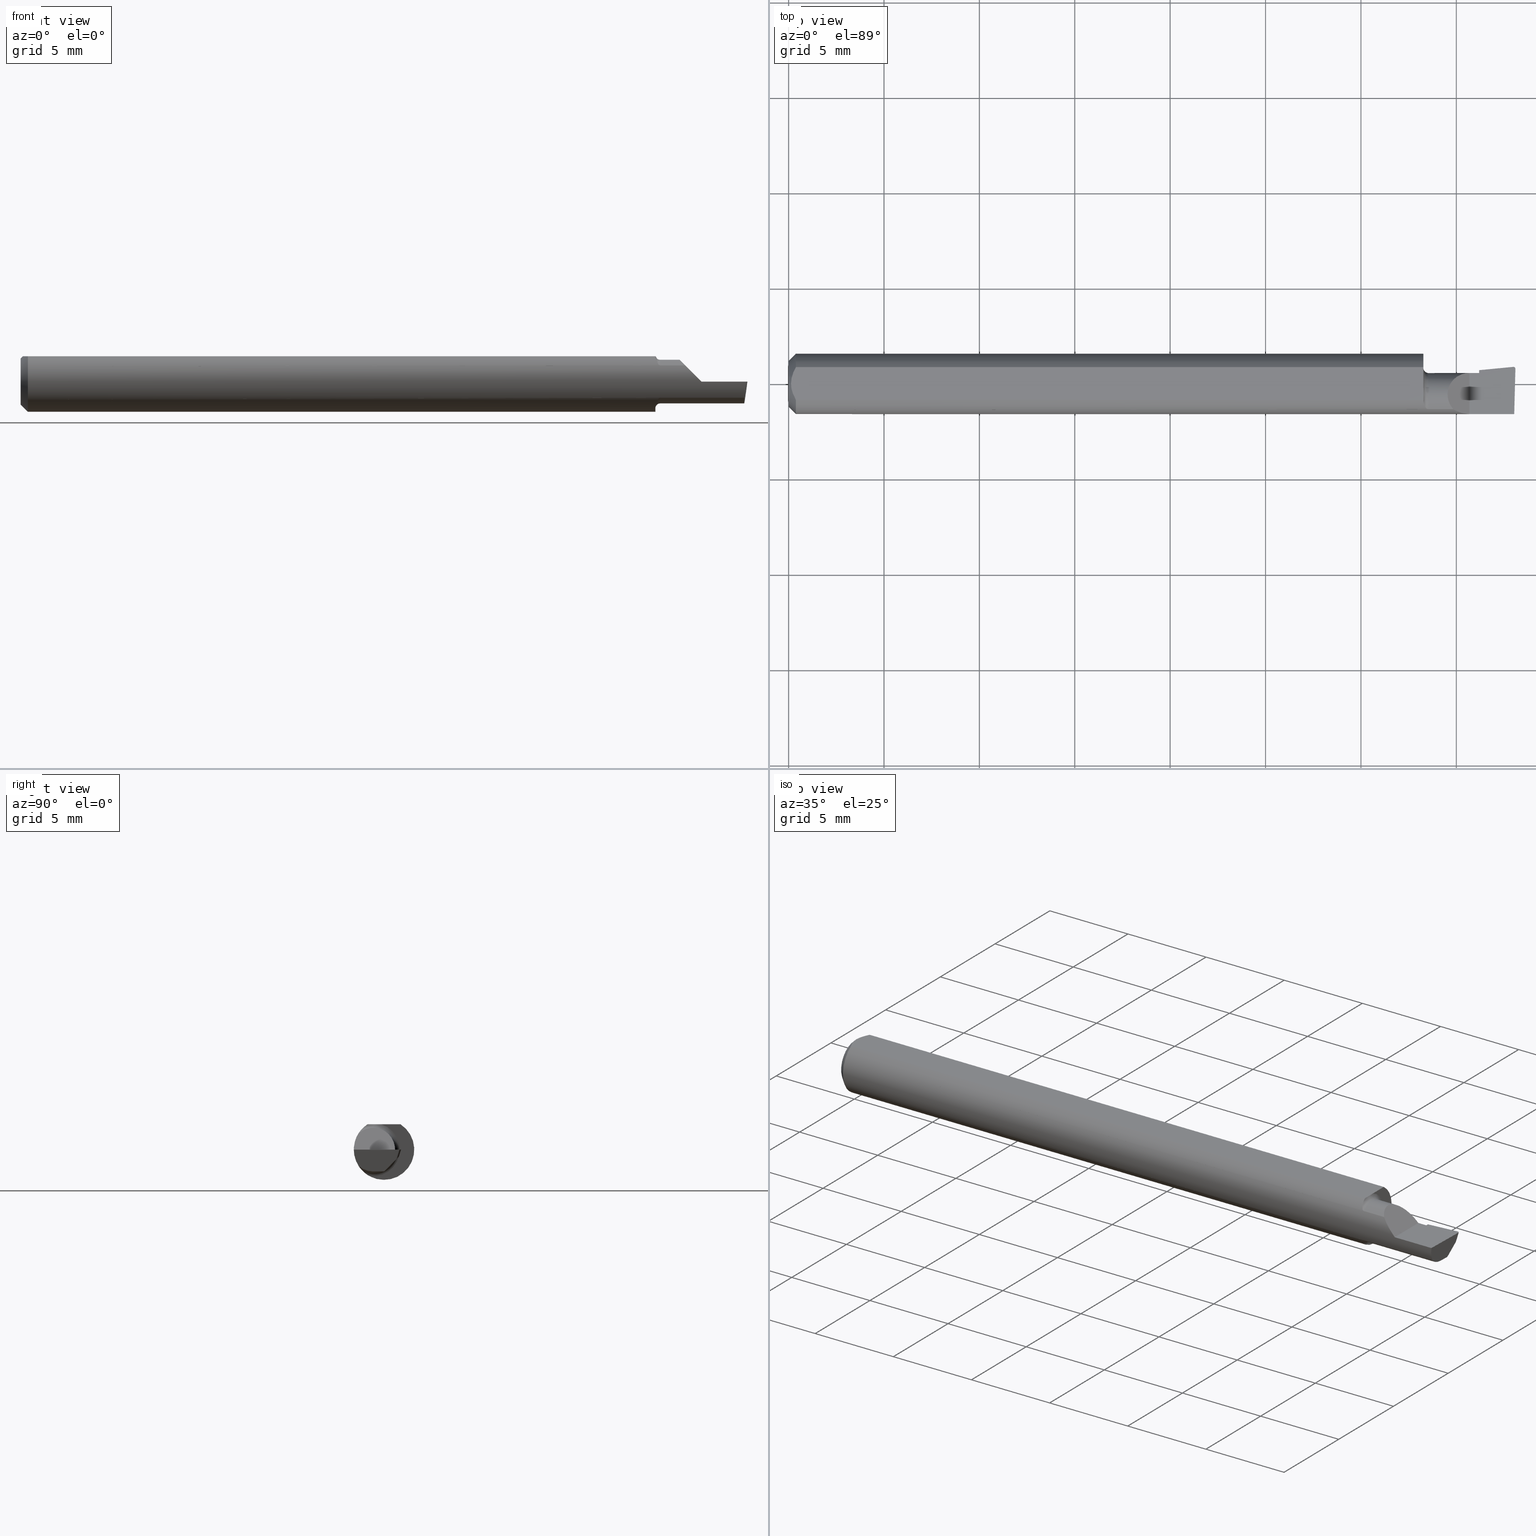
[diagram: canonical four-view strip — front | top / right | iso, engineering-drawing reading convention]
A machine part, canonical four-view strip (front | top / right | iso — engineering-drawing reading convention). The complete STEP part file that produces these views, byte-faithful:
ISO-10303-21;
HEADER;
FILE_DESCRIPTION (( 'STEP AP214' ),
    '1' );
FILE_NAME ('B100150R.STEP',
    '2020-05-08T22:20:16',
    ( '' ),
    ( '' ),
    'SwSTEP 2.0',
    'SolidWorks 2018',
    '' );
FILE_SCHEMA (( 'AUTOMOTIVE_DESIGN' ));
ENDSEC;

DATA;
#1 = AXIS2_PLACEMENT_3D ( 'NONE', #5, #155, #512 ) ;
#2 = CIRCLE ( 'NONE', #38, 0.04734999999999965625 ) ;
#3 = EDGE_CURVE ( 'NONE', #467, #34, #150, .T. ) ;
#4 = VERTEX_POINT ( 'NONE', #174 ) ;
#5 = CARTESIAN_POINT ( 'NONE',  ( 1.490592351376191838, -0.04680632761517492663, -0.05901368851803154292 ) ) ;
#6 = EDGE_LOOP ( 'NONE', ( #542, #25, #130, #87 ) ) ;
#7 = STYLED_ITEM ( 'NONE', ( #131 ), #96 ) ;
#8 = CARTESIAN_POINT ( 'NONE',  ( 1.315004130572074326, -0.05000376612213290606, -0.03726710953164809326 ) ) ;
#9 = APPLICATION_PROTOCOL_DEFINITION ( 'draft international standard', 'automotive_design', 1998, #59 ) ;
#10 = DIRECTION ( 'NONE',  ( 1.000000000000000000, 0.0000000000000000000, 0.0000000000000000000 ) ) ;
#11 = CARTESIAN_POINT ( 'NONE',  ( 0.01500000000000000465, 0.0000000000000000000, -0.06235000000000000264 ) ) ;
#12 = CARTESIAN_POINT ( 'NONE',  ( 1.425000000000000266, 0.02842832138518451568, 0.0000000000000000000 ) ) ;
#13 = CARTESIAN_POINT ( 'NONE',  ( 1.498384822753108914, 0.03264131821163467062, -0.01250862198832606090 ) ) ;
#14 = VERTEX_POINT ( 'NONE', #433 ) ;
#15 = ORIENTED_EDGE ( 'NONE', *, *, #494, .F. ) ;
#16 = DIRECTION ( 'NONE',  ( -1.000000000000000000, -0.0000000000000000000, -0.0000000000000000000 ) ) ;
#17 = VECTOR ( 'NONE', #488, 39.37007874015748854 ) ;
#18 = EDGE_CURVE ( 'NONE', #577, #606, #344, .T. ) ;
#19 = VECTOR ( 'NONE', #269, 39.37007874015748854 ) ;
#20 = ORIENTED_EDGE ( 'NONE', *, *, #133, .T. ) ;
#21 = CARTESIAN_POINT ( 'NONE',  ( 0.01500000000000185039, -0.03386738844380016850, 0.05235000000000000070 ) ) ;
#22 = ORIENTED_EDGE ( 'NONE', *, *, #334, .T. ) ;
#23 = STYLED_ITEM ( 'NONE', ( #427 ), #267 ) ;
#24 = CARTESIAN_POINT ( 'NONE',  ( 1.494167560590867527, 0.03076208604347173067, -0.01402709660331437347 ) ) ;
#25 = ORIENTED_EDGE ( 'NONE', *, *, #33, .T. ) ;
#26 = CARTESIAN_POINT ( 'NONE',  ( 1.393107270290912414, -0.06234999999999999570, 0.01189272970908759539 ) ) ;
#27 = UNCERTAINTY_MEASURE_WITH_UNIT (LENGTH_MEASURE( 1.000000000000000082E-05 ), #374, 'distance_accuracy_value', 'NONE');
#28 = ORIENTED_EDGE ( 'NONE', *, *, #515, .F. ) ;
#29 = ORIENTED_EDGE ( 'NONE', *, *, #633, .F. ) ;
#30 = DIRECTION ( 'NONE',  ( 2.429359850419095604E-34, 4.268512490100411279E-17, 1.000000000000000000 ) ) ;
#31 = ORIENTED_EDGE ( 'NONE', *, *, #84, .T. ) ;
#32 = AXIS2_PLACEMENT_3D ( 'NONE', #95, #99, #54 ) ;
#33 = EDGE_CURVE ( 'NONE', #578, #281, #539, .T. ) ;
#34 = VERTEX_POINT ( 'NONE', #378 ) ;
#35 = DIRECTION ( 'NONE',  ( 0.0000000000000000000, 0.6963153109074924352, 0.7177360153954948085 ) ) ;
#36 = ORIENTED_EDGE ( 'NONE', *, *, #3, .T. ) ;
#37 = CARTESIAN_POINT ( 'NONE',  ( 1.317655921777290517, -0.05218794095652969783, 0.03413037274368475177 ) ) ;
#38 = AXIS2_PLACEMENT_3D ( 'NONE', #376, #16, #332 ) ;
#39 = VERTEX_POINT ( 'NONE', #21 ) ;
#40 = DIRECTION ( 'NONE',  ( -0.09165774897393340337, 0.9519021185660613282, -0.2923717047227305521 ) ) ;
#41 = CARTESIAN_POINT ( 'NONE',  ( 1.425000000000000266, -0.005995022861444606645, -0.04504999999999998589 ) ) ;
#42 = DIRECTION ( 'NONE',  ( 5.691349986800549142E-18, -1.000000000000000000, 0.0000000000000000000 ) ) ;
#43 = ORIENTED_EDGE ( 'NONE', *, *, #562, .T. ) ;
#44 = DIRECTION ( 'NONE',  ( -1.000000000000000000, -5.691349986800549142E-18, 0.0000000000000000000 ) ) ;
#45 = DIRECTION ( 'NONE',  ( 0.0000000000000000000, 0.0000000000000000000, 1.000000000000000000 ) ) ;
#46 =( BOUNDED_CURVE ( )  B_SPLINE_CURVE ( 3, ( #527, #431, #639, #24 ),
 .UNSPECIFIED., .F., .F. ) 
 B_SPLINE_CURVE_WITH_KNOTS ( ( 4, 4 ),
 ( 3.064097098354602977, 3.156599629463090473 ),
 .UNSPECIFIED. ) 
 CURVE ( )  GEOMETRIC_REPRESENTATION_ITEM ( )  RATIONAL_B_SPLINE_CURVE ( ( 1.000000000000000000, 0.9992870672494025275, 0.9992870672494025275, 1.000000000000000000 ) ) 
 REPRESENTATION_ITEM ( '' )  );
#47 = FACE_OUTER_BOUND ( 'NONE', #546, .T. ) ;
#48 = PLANE ( 'NONE',  #1 ) ;
#49 = ADVANCED_FACE ( 'NONE', ( #294 ), #262, .T. ) ;
#50 = VERTEX_POINT ( 'NONE', #226 ) ;
#51 = EDGE_CURVE ( 'NONE', #585, #511, #2, .T. ) ;
#52 = CARTESIAN_POINT ( 'NONE',  ( 0.01218518006020415448, 0.02868529347538067639, 0.05235000000000000070 ) ) ;
#53 = ORIENTED_EDGE ( 'NONE', *, *, #525, .T. ) ;
#54 = DIRECTION ( 'NONE',  ( 0.0000000000000000000, -1.000000000000000000, 0.0000000000000000000 ) ) ;
#55 = VECTOR ( 'NONE', #464, 39.37007874015748143 ) ;
#56 = ORIENTED_EDGE ( 'NONE', *, *, #348, .T. ) ;
#57 = PRESENTATION_LAYER_ASSIGNMENT (  '', '', ( #23 ) ) ;
#58 = CYLINDRICAL_SURFACE ( 'NONE', #584, 0.04504999999999999283 ) ;
#59 = APPLICATION_CONTEXT ( 'automotive_design' ) ;
#60 = CARTESIAN_POINT ( 'NONE',  ( 1.425000000000000266, 0.01759478951136490138, -0.02073449570020009097 ) ) ;
#61 = ORIENTED_EDGE ( 'NONE', *, *, #256, .F. ) ;
#62 = APPLICATION_CONTEXT ( 'automotive_design' ) ;
#63 = CARTESIAN_POINT ( 'NONE',  ( 1.425000000000000266, 0.004321405215356080576, -0.03441620828959360279 ) ) ;
#64 = VERTEX_POINT ( 'NONE', #69 ) ;
#65 =( NAMED_UNIT ( * ) PLANE_ANGLE_UNIT ( ) SI_UNIT ( $, .RADIAN. ) );
#66 = CARTESIAN_POINT ( 'NONE',  ( 1.485933158780053276, 0.006882228698993225931, -0.07557081307649678170 ) ) ;
#67 = VECTOR ( 'NONE', #135, 39.37007874015748143 ) ;
#68 = DIRECTION ( 'NONE',  ( -1.000000000000000000, -5.691349986800549142E-18, -0.0000000000000000000 ) ) ;
#69 = CARTESIAN_POINT ( 'NONE',  ( 1.405000000000000249, -0.06235000000000005121, 1.163414459189985436E-17 ) ) ;
#70 = AXIS2_PLACEMENT_3D ( 'NONE', #413, #108, #456 ) ;
#71 = EDGE_CURVE ( 'NONE', #39, #14, #489, .T. ) ;
#72 = DIRECTION ( 'NONE',  ( -0.1240019227988989614, -0.3022330132596628971, -0.9451342385281364944 ) ) ;
#73 = LINE ( 'NONE', #11, #55 ) ;
#74 = ORIENTED_EDGE ( 'NONE', *, *, #618, .T. ) ;
#75 = FACE_OUTER_BOUND ( 'NONE', #499, .T. ) ;
#76 = AXIS2_PLACEMENT_3D ( 'NONE', #635, #72, #333 ) ;
#77 = ORIENTED_EDGE ( 'NONE', *, *, #363, .F. ) ;
#78 = VERTEX_POINT ( 'NONE', #477 ) ;
#79 = AXIS2_PLACEMENT_3D ( 'NONE', #12, #327, #628 ) ;
#80 = LINE ( 'NONE', #450, #474 ) ;
#81 = B_SPLINE_CURVE_WITH_KNOTS ( 'NONE', 3,
 ( #514, #157, #624, #320, #8, #365, #451, #501, #141, #609 ),
 .UNSPECIFIED., .F., .F.,
 ( 4, 2, 2, 2, 4 ),
 ( 1.961463022573438545E-07, 0.0001095081557633810167, 0.0002188201652245046734, 0.0004374441841467520409, 0.0008746922219912415175 ),
 .UNSPECIFIED. ) ;
#82 = ORIENTED_EDGE ( 'NONE', *, *, #280, .T. ) ;
#83 = CARTESIAN_POINT ( 'NONE',  ( 1.500000000000000222, -0.02239999999999999630, -0.04504999999999998589 ) ) ;
#84 = EDGE_CURVE ( 'NONE', #577, #322, #221, .T. ) ;
#85 = EDGE_LOOP ( 'NONE', ( #432, #337, #627 ) ) ;
#86 = VECTOR ( 'NONE', #531, 39.37007874015748143 ) ;
#87 = ORIENTED_EDGE ( 'NONE', *, *, #483, .F. ) ;
#88 = CARTESIAN_POINT ( 'NONE',  ( 1.492874371667014088, -0.04428776192107809762, -0.04097143695815298053 ) ) ;
#89 = CARTESIAN_POINT ( 'NONE',  ( 1.371638225962093394, -0.05267366071428568330, 0.03336177403790626522 ) ) ;
#90 = CARTESIAN_POINT ( 'NONE',  ( 0.0000000000000000000, 6.717187693324806899E-18, 0.04734999999999965625 ) ) ;
#91 = MECHANICAL_DESIGN_GEOMETRIC_PRESENTATION_REPRESENTATION (  '', ( #23 ), #123 ) ;
#92 = ORIENTED_EDGE ( 'NONE', *, *, #459, .F. ) ;
#93 = CARTESIAN_POINT ( 'NONE',  ( 1.509953961983671933, 0.03660845752520203861, 0.0000000000000000000 ) ) ;
#94 = CARTESIAN_POINT ( 'NONE',  ( 1.497690526998707528, 0.02804183703948738213, -0.01718068703854480628 ) ) ;
#95 = CARTESIAN_POINT ( 'NONE',  ( 1.425000000000000266, -0.02239999999999999630, 0.0000000000000000000 ) ) ;
#96 = MANIFOLD_SOLID_BREP ( 'CD2C1CE1-48A6-42ea-B641-DD9F01659EE2-GAAFaceID16', #101 ) ;
#97 = VECTOR ( 'NONE', #509, 39.37007874015748854 ) ;
#98 = LINE ( 'NONE', #545, #236 ) ;
#99 = DIRECTION ( 'NONE',  ( -1.000000000000000000, -5.691349986800549142E-18, -0.0000000000000000000 ) ) ;
#100 = ADVANCED_FACE ( 'NONE', ( #75 ), #58, .T. ) ;
#101 = CLOSED_SHELL ( 'NONE', ( #560, #360, #311, #357, #147, #315, #206, #104, #508, #152, #454, #513, #661, #100, #620, #258, #552, #408, #49 ) ) ;
#102 = LINE ( 'NONE', #136, #228 ) ;
#103 = CARTESIAN_POINT ( 'NONE',  ( 1.499880855614015740, 0.03110005946548960454, 2.797005382439670689E-20 ) ) ;
#104 = ADVANCED_FACE ( 'NONE', ( #463 ), #572, .F. ) ;
#105 = ORIENTED_EDGE ( 'NONE', *, *, #525, .F. ) ;
#106 = AXIS2_PLACEMENT_3D ( 'NONE', #543, #649, #397 ) ;
#107 = EDGE_CURVE ( 'NONE', #534, #395, #339, .T. ) ;
#108 = DIRECTION ( 'NONE',  ( 1.000000000000000000, 0.0000000000000000000, 0.0000000000000000000 ) ) ;
#109 = FILL_AREA_STYLE ('',( #416 ) ) ;
#110 = PLANE ( 'NONE',  #317 ) ;
#111 = CARTESIAN_POINT ( 'NONE',  ( 1.500053207916534070, 0.03152013807843873083, 0.001313657550806701223 ) ) ;
#112 = AXIS2_PLACEMENT_3D ( 'NONE', #161, #114, #472 ) ;
#113 = CIRCLE ( 'NONE', #285, 0.06235000000000000264 ) ;
#114 = DIRECTION ( 'NONE',  ( 1.000000000000000000, 5.691349986800549142E-18, 0.0000000000000000000 ) ) ;
#115 =( LENGTH_UNIT ( ) NAMED_UNIT ( * ) SI_UNIT ( $, .METRE. ) );
#116 =( BOUNDED_CURVE ( )  B_SPLINE_CURVE ( 3, ( #125, #26, #381, #284 ),
 .UNSPECIFIED., .F., .F. ) 
 B_SPLINE_CURVE_WITH_KNOTS ( ( 4, 4 ),
 ( 4.712388980384689674, 5.276982613231242958 ),
 .UNSPECIFIED. ) 
 CURVE ( )  GEOMETRIC_REPRESENTATION_ITEM ( )  RATIONAL_B_SPLINE_CURVE ( ( 1.000000000000000000, 0.9736121104788254543, 0.9736121104788254543, 1.000000000000000000 ) ) 
 REPRESENTATION_ITEM ( '' )  );
#117 = LINE ( 'NONE', #484, #86 ) ;
#118 = ORIENTED_EDGE ( 'NONE', *, *, #334, .F. ) ;
#119 = EDGE_CURVE ( 'NONE', #621, #366, #148, .T. ) ;
#120 = DIRECTION ( 'NONE',  ( -1.000000000000000000, -5.691349986800549142E-18, -0.0000000000000000000 ) ) ;
#121 = CARTESIAN_POINT ( 'NONE',  ( 1.493880948194808544, 0.03095478369585228859, -0.01336835189448973629 ) ) ;
#122 = B_SPLINE_CURVE_WITH_KNOTS ( 'NONE', 3,
 ( #201, #448, #252, #613, #656, #354 ),
 .UNSPECIFIED., .F., .F.,
 ( 4, 2, 4 ),
 ( 0.0001373866386898216002, 0.0004989949926051524777, 0.0008606033465204833552 ),
 .UNSPECIFIED. ) ;
#123 =( GEOMETRIC_REPRESENTATION_CONTEXT ( 3 ) GLOBAL_UNCERTAINTY_ASSIGNED_CONTEXT ( ( #382 ) ) GLOBAL_UNIT_ASSIGNED_CONTEXT ( ( #216, #566, #266 ) ) REPRESENTATION_CONTEXT ( 'NONE', 'WORKASPACE' ) );
#124 = AXIS2_PLACEMENT_3D ( 'NONE', #83, #30, #390 ) ;
#125 = CARTESIAN_POINT ( 'NONE',  ( 1.405000000000000249, -0.06235000000000005121, 1.163414459189985436E-17 ) ) ;
#126 = ORIENTED_EDGE ( 'NONE', *, *, #644, .T. ) ;
#127 = DIRECTION ( 'NONE',  ( -1.000000000000000000, -0.0000000000000000000, -0.0000000000000000000 ) ) ;
#128 = VECTOR ( 'NONE', #127, 39.37007874015748143 ) ;
#129 = ORIENTED_EDGE ( 'NONE', *, *, #292, .T. ) ;
#130 = ORIENTED_EDGE ( 'NONE', *, *, #363, .T. ) ;
#131 = PRESENTATION_STYLE_ASSIGNMENT (( #473 ) ) ;
#132 = LINE ( 'NONE', #612, #540 ) ;
#133 = EDGE_CURVE ( 'NONE', #34, #335, #46, .T. ) ;
#134 = ORIENTED_EDGE ( 'NONE', *, *, #331, .F. ) ;
#135 = DIRECTION ( 'NONE',  ( -5.691349986800549142E-18, 1.000000000000000000, 6.969893544162626646E-34 ) ) ;
#136 = CARTESIAN_POINT ( 'NONE',  ( 1.425000000000000266, -0.02239999999999999630, -0.04504999999999998589 ) ) ;
#137 = ORIENTED_EDGE ( 'NONE', *, *, #528, .F. ) ;
#138 = CARTESIAN_POINT ( 'NONE',  ( 1.341051366671215384, -0.01896673977657535939, 0.06394863332878392148 ) ) ;
#139 = CARTESIAN_POINT ( 'NONE',  ( 1.313772805890642381, -0.04842073308978436796, 0.03934539127329832187 ) ) ;
#140 = DIRECTION ( 'NONE',  ( -1.000000000000000000, -0.0000000000000000000, -0.0000000000000000000 ) ) ;
#141 = CARTESIAN_POINT ( 'NONE',  ( 1.310000000000000275, -0.03531759654985788116, -0.05169891940248795559 ) ) ;
#142 = CARTESIAN_POINT ( 'NONE',  ( 1.500000000000000222, -0.02239999999999999630, -0.04504999999999998589 ) ) ;
#143 = CARTESIAN_POINT ( 'NONE',  ( 1.405000000000000249, -0.2500000000000000555, 1.163414459189985436E-17 ) ) ;
#144 =( BOUNDED_CURVE ( )  B_SPLINE_CURVE ( 3, ( #502, #251, #94, #400 ),
 .UNSPECIFIED., .F., .F. ) 
 B_SPLINE_CURVE_WITH_KNOTS ( ( 4, 4 ),
 ( 3.156599629463090473, 4.715023529952363290 ),
 .UNSPECIFIED. ) 
 CURVE ( )  GEOMETRIC_REPRESENTATION_ITEM ( )  RATIONAL_B_SPLINE_CURVE ( ( 1.000000000000000000, 0.8076450242550375913, 0.8076450242550375913, 1.000000000000000000 ) ) 
 REPRESENTATION_ITEM ( '' )  );
#145 = AXIS2_PLACEMENT_3D ( 'NONE', #569, #218, #268 ) ;
#146 = CARTESIAN_POINT ( 'NONE',  ( 0.01500000000000000465, 0.0000000000000000000, 0.0000000000000000000 ) ) ;
#147 = ADVANCED_FACE ( 'NONE', ( #272 ), #420, .F. ) ;
#148 = CIRCLE ( 'NONE', #282, 0.05504999999999998783 ) ;
#149 = ORIENTED_EDGE ( 'NONE', *, *, #318, .F. ) ;
#150 = LINE ( 'NONE', #121, #17 ) ;
#151 = VECTOR ( 'NONE', #140, 39.37007874015748143 ) ;
#152 = ADVANCED_FACE ( 'NONE', ( #405 ), #593, .F. ) ;
#153 = EDGE_CURVE ( 'NONE', #322, #64, #523, .T. ) ;
#154 = ORIENTED_EDGE ( 'NONE', *, *, #33, .F. ) ;
#155 = DIRECTION ( 'NONE',  ( -0.9922060308645520577, 0.02598182930466774732, 0.1218693434051180274 ) ) ;
#156 = ORIENTED_EDGE ( 'NONE', *, *, #188, .T. ) ;
#157 = CARTESIAN_POINT ( 'NONE',  ( 1.318537702541799250, -0.05267366071428540575, -0.03336177403790673013 ) ) ;
#158 = AXIS2_PLACEMENT_3D ( 'NONE', #237, #591, #185 ) ;
#159 = SURFACE_STYLE_USAGE ( .BOTH. , #466 ) ;
#160 = ORIENTED_EDGE ( 'NONE', *, *, #298, .T. ) ;
#161 = CARTESIAN_POINT ( 'NONE',  ( 1.425000000000000266, -0.02239999999999999630, 0.0000000000000000000 ) ) ;
#162 = CARTESIAN_POINT ( 'NONE',  ( 0.8971276994979846542, -0.02239999999999999977, 7.383056331043946157E-17 ) ) ;
#163 = DIRECTION ( 'NONE',  ( -1.224646799147353947E-16, 0.0000000000000000000, -1.000000000000000000 ) ) ;
#164 = ORIENTED_EDGE ( 'NONE', *, *, #18, .F. ) ;
#165 = SURFACE_SIDE_STYLE ('',( #391 ) ) ;
#166 =( BOUNDED_CURVE ( )  B_SPLINE_CURVE ( 3, ( #530, #650, #544, #301 ),
 .UNSPECIFIED., .F., .T. ) 
 B_SPLINE_CURVE_WITH_KNOTS ( ( 4, 4 ),
 ( 1.953092279228398453, 3.511516179717621977 ),
 .UNSPECIFIED. ) 
 CURVE ( )  GEOMETRIC_REPRESENTATION_ITEM ( )  RATIONAL_B_SPLINE_CURVE ( ( 1.000000000000000000, 0.8076450242550491376, 0.8076450242550491376, 1.000000000000000000 ) ) 
 REPRESENTATION_ITEM ( '' )  );
#167 = ORIENTED_EDGE ( 'NONE', *, *, #348, .F. ) ;
#168 = DIRECTION ( 'NONE',  ( -0.1240019227988989614, -0.3022330132596628971, -0.9451342385281364944 ) ) ;
#169 = CARTESIAN_POINT ( 'NONE',  ( 0.004999999999989931769, 7.898418181085889318E-16, 0.05235000000000000070 ) ) ;
#170 = VECTOR ( 'NONE', #503, 39.37007874015748143 ) ;
#171 = EDGE_LOOP ( 'NONE', ( #553, #353, #434 ) ) ;
#172 = ORIENTED_EDGE ( 'NONE', *, *, #528, .T. ) ;
#173 = EDGE_CURVE ( 'NONE', #322, #395, #660, .T. ) ;
#174 = CARTESIAN_POINT ( 'NONE',  ( 0.01500000000000000465, 0.0000000000000000000, -0.06235000000000000264 ) ) ;
#175 = EDGE_LOOP ( 'NONE', ( #495, #261, #53, #404, #156 ) ) ;
#176 = FACE_OUTER_BOUND ( 'NONE', #179, .T. ) ;
#177 = DIRECTION ( 'NONE',  ( 0.0000000000000000000, 1.000000000000000000, -4.268512490100411895E-17 ) ) ;
#178 = PRESENTATION_LAYER_ASSIGNMENT (  '', '', ( #7 ) ) ;
#179 = EDGE_LOOP ( 'NONE', ( #313, #537, #407, #257, #134 ) ) ;
#180 = CARTESIAN_POINT ( 'NONE',  ( 1.405000000000000249, 0.02264999999999996183, 1.163414459189985436E-17 ) ) ;
#181 = CARTESIAN_POINT ( 'NONE',  ( 1.310106967748909668, -0.03386738844375186686, 0.05235000000000000070 ) ) ;
#182 = ORIENTED_EDGE ( 'NONE', *, *, #153, .T. ) ;
#183 = AXIS2_PLACEMENT_3D ( 'NONE', #659, #403, #45 ) ;
#184 = CARTESIAN_POINT ( 'NONE',  ( 1.425000000000000266, 0.02490332389221963996, -0.01147666661066421533 ) ) ;
#185 = DIRECTION ( 'NONE',  ( 0.0000000000000000000, -1.000000000000000000, 0.0000000000000000000 ) ) ;
#186 = VECTOR ( 'NONE', #442, 39.37007874015748854 ) ;
#187 = CARTESIAN_POINT ( 'NONE',  ( 1.493589448587071544, -0.05267366071428575269, -0.03336177403790618196 ) ) ;
#188 = EDGE_CURVE ( 'NONE', #199, #606, #387, .T. ) ;
#189 = CARTESIAN_POINT ( 'NONE',  ( 1.405000000000000249, 0.02264999999999996183, 1.163414459189985436E-17 ) ) ;
#190 = CARTESIAN_POINT ( 'NONE',  ( 1.425000000000000266, -0.2500000000000000555, 9.184850993605139501E-18 ) ) ;
#191 = LINE ( 'NONE', #162, #319 ) ;
#192 = VERTEX_POINT ( 'NONE', #493 ) ;
#193 = ORIENTED_EDGE ( 'NONE', *, *, #188, .F. ) ;
#194 = CARTESIAN_POINT ( 'NONE',  ( 1.425000000000000266, 0.02264999999999999653, 1.836970198721030674E-16 ) ) ;
#195 = CARTESIAN_POINT ( 'NONE',  ( 1.320000000000000062, -0.05267366071428521146, 0.03336177403790664686 ) ) ;
#196 = FACE_OUTER_BOUND ( 'NONE', #316, .T. ) ;
#197 = AXIS2_PLACEMENT_3D ( 'NONE', #643, #369, #538 ) ;
#198 = DIRECTION ( 'NONE',  ( -0.7071067811865516806, 0.0000000000000000000, 0.7071067811865431318 ) ) ;
#199 = VERTEX_POINT ( 'NONE', #385 ) ;
#200 = ORIENTED_EDGE ( 'NONE', *, *, #173, .F. ) ;
#201 = CARTESIAN_POINT ( 'NONE',  ( 1.310000000000000275, -0.005371200864418011582, 0.05235000000000000070 ) ) ;
#202 = DIRECTION ( 'NONE',  ( 3.962974135542377331E-18, -0.6963153109074924352, -0.7177360153954948085 ) ) ;
#203 = LINE ( 'NONE', #190, #67 ) ;
#204 = DIRECTION ( 'NONE',  ( -0.02617694830784728782, -0.9996573249755579260, 4.246274422243624484E-17 ) ) ;
#205 = CARTESIAN_POINT ( 'NONE',  ( 1.310367046603136298, -0.03808730168870256422, 0.04961996292138169673 ) ) ;
#206 = ADVANCED_FACE ( 'NONE', ( #535 ), #289, .F. ) ;
#207 = ORIENTED_EDGE ( 'NONE', *, *, #210, .T. ) ;
#208 = CARTESIAN_POINT ( 'NONE',  ( -2.563953169053421735E-19, 0.02264999999999997918, 1.836970198721030427E-16 ) ) ;
#209 = AXIS2_PLACEMENT_3D ( 'NONE', #652, #445, #198 ) ;
#210 = EDGE_CURVE ( 'NONE', #50, #467, #287, .T. ) ;
#211 = FACE_OUTER_BOUND ( 'NONE', #6, .T. ) ;
#212 = ORIENTED_EDGE ( 'NONE', *, *, #440, .F. ) ;
#213 = MECHANICAL_DESIGN_GEOMETRIC_PRESENTATION_REPRESENTATION (  '', ( #7 ), #248 ) ;
#214 =( NAMED_UNIT ( * ) PLANE_ANGLE_UNIT ( ) SI_UNIT ( $, .RADIAN. ) );
#215 = EDGE_LOOP ( 'NONE', ( #137, #424, #589, #283 ) ) ;
#216 =( CONVERSION_BASED_UNIT ( 'INCH', #278 ) LENGTH_UNIT ( ) NAMED_UNIT ( #465 ) );
#217 = ORIENTED_EDGE ( 'NONE', *, *, #440, .T. ) ;
#218 = DIRECTION ( 'NONE',  ( -1.000000000000000000, -0.0000000000000000000, -0.0000000000000000000 ) ) ;
#219 = CARTESIAN_POINT ( 'NONE',  ( 1.372500000000000275, -0.05267366071428575269, -0.03336177403790618196 ) ) ;
#220 = AXIS2_PLACEMENT_3D ( 'NONE', #568, #44, #402 ) ;
#221 =( BOUNDED_CURVE ( )  B_SPLINE_CURVE ( 3, ( #579, #478, #422, #375 ),
 .UNSPECIFIED., .F., .T. ) 
 B_SPLINE_CURVE_WITH_KNOTS ( ( 4, 4 ),
 ( 0.7961532496683304538, 1.360746882514882294 ),
 .UNSPECIFIED. ) 
 CURVE ( )  GEOMETRIC_REPRESENTATION_ITEM ( )  RATIONAL_B_SPLINE_CURVE ( ( 1.000000000000000000, 0.9736121104788255654, 0.9736121104788255654, 1.000000000000000000 ) ) 
 REPRESENTATION_ITEM ( '' )  );
#222 = CIRCLE ( 'NONE', #32, 0.04504999999999999283 ) ;
#223 = DIRECTION ( 'NONE',  ( 5.691349986800549142E-18, -1.000000000000000000, 0.0000000000000000000 ) ) ;
#224 = FACE_OUTER_BOUND ( 'NONE', #171, .T. ) ;
#225 = CARTESIAN_POINT ( 'NONE',  ( 0.006057557792978142223, -0.01187252718384441616, 0.05234999999999998682 ) ) ;
#226 = CARTESIAN_POINT ( 'NONE',  ( 1.496007920276498648, 0.03524764111161338143, -8.537024980200822558E-18 ) ) ;
#227 = EDGE_CURVE ( 'NONE', #64, #192, #116, .T. ) ;
#228 = VECTOR ( 'NONE', #177, 39.37007874015748143 ) ;
#229 = VERTEX_POINT ( 'NONE', #180 ) ;
#230 = CARTESIAN_POINT ( 'NONE',  ( 1.310000000000000275, -0.02239999999999999630, 0.0000000000000000000 ) ) ;
#231 = CARTESIAN_POINT ( 'NONE',  ( 1.425000000000000266, 0.02412829537801145299, -0.01400000000000000203 ) ) ;
#232 = ORIENTED_EDGE ( 'NONE', *, *, #455, .F. ) ;
#233 = AXIS2_PLACEMENT_3D ( 'NONE', #598, #323, #10 ) ;
#234 = DIRECTION ( 'NONE',  ( 1.000000000000000000, 0.0000000000000000000, 0.0000000000000000000 ) ) ;
#235 = LINE ( 'NONE', #657, #97 ) ;
#236 = VECTOR ( 'NONE', #396, 39.37007874015748143 ) ;
#237 = CARTESIAN_POINT ( 'NONE',  ( 1.320000000000000062, -0.02239999999999999630, 0.0000000000000000000 ) ) ;
#238 = B_SPLINE_CURVE_WITH_KNOTS ( 'NONE', 3,
 ( #619, #314, #663, #359, #52, #411 ),
 .UNSPECIFIED., .F., .F.,
 ( 4, 2, 4 ),
 ( 0.003037199019464981685, 0.003488061124369676216, 0.003938923229274370746 ),
 .UNSPECIFIED. ) ;
#239 = CARTESIAN_POINT ( 'NONE',  ( 1.492525117049605665, -0.2498042633013223268, 9.154091479201578610E-19 ) ) ;
#240 = ORIENTED_EDGE ( 'NONE', *, *, #263, .T. ) ;
#241 = CARTESIAN_POINT ( 'NONE',  ( 1.510364203804932748, 0.03234793331252792947, -0.01400000000000000376 ) ) ;
#242 = AXIS2_PLACEMENT_3D ( 'NONE', #653, #351, #42 ) ;
#243 = EDGE_CURVE ( 'NONE', #395, #50, #166, .T. ) ;
#244 = PLANE ( 'NONE',  #625 ) ;
#245 = PLANE ( 'NONE',  #611 ) ;
#246 = CARTESIAN_POINT ( 'NONE',  ( 1.310000000000000275, -0.005371200864418011582, 0.05235000000000000070 ) ) ;
#247 = CARTESIAN_POINT ( 'NONE',  ( 1.316045261487122531, -0.05110091261051569883, 0.03573737896485316284 ) ) ;
#248 =( GEOMETRIC_REPRESENTATION_CONTEXT ( 3 ) GLOBAL_UNCERTAINTY_ASSIGNED_CONTEXT ( ( #519 ) ) GLOBAL_UNIT_ASSIGNED_CONTEXT ( ( #421, #65, #372 ) ) REPRESENTATION_CONTEXT ( 'NONE', 'WORKASPACE' ) );
#249 = CARTESIAN_POINT ( 'NONE',  ( 1.310000000000000275, 0.03386738844375224156, 0.05235000000000000070 ) ) ;
#250 = CARTESIAN_POINT ( 'NONE',  ( 1.310106967748909668, -0.03386738844375186686, 0.05235000000000000070 ) ) ;
#251 = CARTESIAN_POINT ( 'NONE',  ( 1.496461277308439808, 0.03065349357661072832, -0.01436668378927308948 ) ) ;
#252 = CARTESIAN_POINT ( 'NONE',  ( 1.310282193164834519, -0.01486379476123350814, 0.05235000000000000070 ) ) ;
#253 = CIRCLE ( 'NONE', #632, 0.06235000000000000264 ) ;
#254 = AXIS2_PLACEMENT_3D ( 'NONE', #310, #617, #505 ) ;
#255 = CARTESIAN_POINT ( 'NONE',  ( 1.310000000000000275, 0.0000000000000000000, 0.0000000000000000000 ) ) ;
#256 = EDGE_CURVE ( 'NONE', #4, #39, #510, .T. ) ;
#257 = ORIENTED_EDGE ( 'NONE', *, *, #425, .T. ) ;
#258 = ADVANCED_FACE ( 'NONE', ( #634 ), #245, .T. ) ;
#259 = VECTOR ( 'NONE', #293, 39.37007874015748854 ) ;
#260 = DIRECTION ( 'NONE',  ( 0.0000000000000000000, 1.000000000000000000, 0.0000000000000000000 ) ) ;
#261 = ORIENTED_EDGE ( 'NONE', *, *, #119, .F. ) ;
#262 = CYLINDRICAL_SURFACE ( 'NONE', #76, 0.004000000000000000083 ) ;
#263 = EDGE_CURVE ( 'NONE', #577, #78, #641, .T. ) ;
#264 = PRODUCT_DEFINITION ( 'UNKNOWN', '', #305, #520 ) ;
#265 = AXIS2_PLACEMENT_3D ( 'NONE', #595, #297, #646 ) ;
#266 =( NAMED_UNIT ( * ) SI_UNIT ( $, .STERADIAN. ) SOLID_ANGLE_UNIT ( ) );
#267 = ADVANCED_BREP_SHAPE_REPRESENTATION ( 'B100150R', ( #96, #233 ), #583 ) ;
#268 = DIRECTION ( 'NONE',  ( 0.0000000000000000000, 0.0000000000000000000, 1.000000000000000000 ) ) ;
#269 = DIRECTION ( 'NONE',  ( 0.1053106618241425735, 0.6976485211320179181, 0.7086580314005263004 ) ) ;
#270 = FILL_AREA_STYLE_COLOUR ( '', #647 ) ;
#271 = EDGE_LOOP ( 'NONE', ( #658, #610, #200, #324, #240, #212 ) ) ;
#272 = FACE_OUTER_BOUND ( 'NONE', #438, .T. ) ;
#273 = CARTESIAN_POINT ( 'NONE',  ( 0.01216137397042175820, -0.02864146636719541034, 0.05235000000000000070 ) ) ;
#274 = EDGE_LOOP ( 'NONE', ( #299, #338, #446, #428, #485 ) ) ;
#275 = ORIENTED_EDGE ( 'NONE', *, *, #393, .F. ) ;
#276 = VECTOR ( 'NONE', #120, 39.37007874015748143 ) ;
#277 = CYLINDRICAL_SURFACE ( 'NONE', #379, 0.004000000000000000083 ) ;
#278 = LENGTH_MEASURE_WITH_UNIT ( LENGTH_MEASURE( 0.02539999999999999897 ), #516 );
#279 = EDGE_LOOP ( 'NONE', ( #105, #429, #561, #275, #347, #565 ) ) ;
#280 = EDGE_CURVE ( 'NONE', #389, #541, #102, .T. ) ;
#281 = VERTEX_POINT ( 'NONE', #231 ) ;
#282 = AXIS2_PLACEMENT_3D ( 'NONE', #230, #581, #590 ) ;
#283 = ORIENTED_EDGE ( 'NONE', *, *, #603, .F. ) ;
#284 = CARTESIAN_POINT ( 'NONE',  ( 1.371638225962093394, -0.05267366071428568330, 0.03336177403790626522 ) ) ;
#285 = AXIS2_PLACEMENT_3D ( 'NONE', #255, #556, #260 ) ;
#286 = CARTESIAN_POINT ( 'NONE',  ( 1.495634880358085672, 0.03522968678441162210, 5.345729797365519968E-19 ) ) ;
#287 =( BOUNDED_CURVE ( )  B_SPLINE_CURVE ( 3, ( #436, #486, #532, #286 ),
 .UNSPECIFIED., .F., .F. ) 
 B_SPLINE_CURVE_WITH_KNOTS ( ( 4, 4 ),
 ( 3.511516179717621977, 3.604018710826138339 ),
 .UNSPECIFIED. ) 
 CURVE ( )  GEOMETRIC_REPRESENTATION_ITEM ( )  RATIONAL_B_SPLINE_CURVE ( ( 1.000000000000000000, 0.9992870672494020834, 0.9992870672494020834, 1.000000000000000000 ) ) 
 REPRESENTATION_ITEM ( '' )  );
#288 = EDGE_LOOP ( 'NONE', ( #414, #20, #377, #469, #417, #149, #29, #77 ) ) ;
#289 = PLANE ( 'NONE',  #306 ) ;
#290 = PRODUCT ( 'B100150R', 'B100150R', '', ( #367 ) ) ;
#291 = VERTEX_POINT ( 'NONE', #181 ) ;
#292 = EDGE_CURVE ( 'NONE', #662, #580, #361, .T. ) ;
#293 = DIRECTION ( 'NONE',  ( 0.02617694830784729476, 0.9996573249755579260, -3.158139334220717592E-18 ) ) ;
#294 = FACE_OUTER_BOUND ( 'NONE', #215, .T. ) ;
#295 = FACE_OUTER_BOUND ( 'NONE', #439, .T. ) ;
#296 = ORIENTED_EDGE ( 'NONE', *, *, #618, .F. ) ;
#297 = DIRECTION ( 'NONE',  ( -1.000000000000000000, -0.0000000000000000000, -0.0000000000000000000 ) ) ;
#298 = EDGE_CURVE ( 'NONE', #199, #192, #117, .T. ) ;
#299 = ORIENTED_EDGE ( 'NONE', *, *, #638, .F. ) ;
#300 = CARTESIAN_POINT ( 'NONE',  ( 1.310000000000000275, 0.03264999999999997765, 0.0000000000000000000 ) ) ;
#301 = CARTESIAN_POINT ( 'NONE',  ( 1.496007920276498648, 0.03524764111161338143, -8.537024980200822558E-18 ) ) ;
#302 = CARTESIAN_POINT ( 'NONE',  ( 0.0000000000000000000, -0.03386738844375222768, 0.05234999999999997988 ) ) ;
#303 = PLANE ( 'NONE',  #209 ) ;
#304 = ORIENTED_EDGE ( 'NONE', *, *, #358, .T. ) ;
#305 = PRODUCT_DEFINITION_FORMATION_WITH_SPECIFIED_SOURCE ( 'ANY', '', #290, .NOT_KNOWN. ) ;
#306 = AXIS2_PLACEMENT_3D ( 'NONE', #533, #491, #587 ) ;
#307 = CARTESIAN_POINT ( 'NONE',  ( 0.0000000000000000000, 0.0000000000000000000, -0.04734999999999965625 ) ) ;
#308 = ORIENTED_EDGE ( 'NONE', *, *, #430, .T. ) ;
#309 = ORIENTED_EDGE ( 'NONE', *, *, #425, .F. ) ;
#310 = CARTESIAN_POINT ( 'NONE',  ( 0.01500000000000000465, 0.0000000000000000000, 0.0000000000000000000 ) ) ;
#311 = ADVANCED_FACE ( 'NONE', ( #211 ), #370, .T. ) ;
#312 = FACE_OUTER_BOUND ( 'NONE', #175, .T. ) ;
#313 = ORIENTED_EDGE ( 'NONE', *, *, #358, .F. ) ;
#314 = CARTESIAN_POINT ( 'NONE',  ( 0.004999999999999264581, 0.005945714695019511074, 0.05235000000000000070 ) ) ;
#315 = ADVANCED_FACE ( 'NONE', ( #346 ), #336, .T. ) ;
#316 = EDGE_LOOP ( 'NONE', ( #56, #36, #443, #154 ) ) ;
#317 = AXIS2_PLACEMENT_3D ( 'NONE', #573, #630, #329 ) ;
#318 = EDGE_CURVE ( 'NONE', #481, #541, #597, .T. ) ;
#319 = VECTOR ( 'NONE', #325, 39.37007874015748143 ) ;
#320 = CARTESIAN_POINT ( 'NONE',  ( 1.315660490243265590, -0.05075743519649666274, -0.03622883715117793113 ) ) ;
#321 = DIMENSIONAL_EXPONENTS ( 1.000000000000000000, 0.0000000000000000000, 0.0000000000000000000, 0.0000000000000000000, 0.0000000000000000000, 0.0000000000000000000, 0.0000000000000000000 ) ;
#322 = VERTEX_POINT ( 'NONE', #419 ) ;
#323 = DIRECTION ( 'NONE',  ( 0.0000000000000000000, 0.0000000000000000000, 1.000000000000000000 ) ) ;
#324 = ORIENTED_EDGE ( 'NONE', *, *, #84, .F. ) ;
#325 = DIRECTION ( 'NONE',  ( 0.9953961983671787417, 0.09584575252022463354, -1.219008768213809849E-16 ) ) ;
#326 = ORIENTED_EDGE ( 'NONE', *, *, #210, .F. ) ;
#327 = DIRECTION ( 'NONE',  ( -1.000000000000000000, -5.691349986800549142E-18, 0.0000000000000000000 ) ) ;
#328 = CARTESIAN_POINT ( 'NONE',  ( 0.0000000000000000000, -0.02240000000000000324, 0.0000000000000000000 ) ) ;
#329 = DIRECTION ( 'NONE',  ( 5.691349986800549142E-18, -1.000000000000000000, 0.0000000000000000000 ) ) ;
#330 = CONICAL_SURFACE ( 'NONE', #70, 0.06235000000000000264, 0.7853981633974594923 ) ;
#331 = EDGE_CURVE ( 'NONE', #585, #4, #73, .T. ) ;
#332 = DIRECTION ( 'NONE',  ( 0.0000000000000000000, 0.0000000000000000000, 1.000000000000000000 ) ) ;
#333 = DIRECTION ( 'NONE',  ( 0.0000000000000000000, 0.9524855432518783971, -0.3045837978228226883 ) ) ;
#334 = EDGE_CURVE ( 'NONE', #481, #554, #460, .T. ) ;
#335 = VERTEX_POINT ( 'NONE', #517 ) ;
#336 = CYLINDRICAL_SURFACE ( 'NONE', #145, 0.06235000000000000264 ) ;
#337 = ORIENTED_EDGE ( 'NONE', *, *, #318, .T. ) ;
#338 = ORIENTED_EDGE ( 'NONE', *, *, #51, .F. ) ;
#339 = LINE ( 'NONE', #111, #604 ) ;
#340 = EDGE_LOOP ( 'NONE', ( #457, #304 ) ) ;
#341 = ORIENTED_EDGE ( 'NONE', *, *, #173, .T. ) ;
#342 = CIRCLE ( 'NONE', #106, 0.04504999999999999283 ) ;
#343 = CARTESIAN_POINT ( 'NONE',  ( 2.249639673992788601E-32, -0.06234999999999999570, 1.836970198721030427E-16 ) ) ;
#344 = LINE ( 'NONE', #219, #276 ) ;
#345 = DIRECTION ( 'NONE',  ( -0.06894566448119622548, 0.7160281025913035613, -0.6946583704589933683 ) ) ;
#346 = FACE_OUTER_BOUND ( 'NONE', #536, .T. ) ;
#347 = ORIENTED_EDGE ( 'NONE', *, *, #71, .F. ) ;
#348 = EDGE_CURVE ( 'NONE', #578, #467, #191, .T. ) ;
#349 = CARTESIAN_POINT ( 'NONE',  ( 1.318720799723182457, -0.05267366071440097997, 0.03336177403772624950 ) ) ;
#350 = DIRECTION ( 'NONE',  ( 0.0000000000000000000, 0.2936076258024062913, 0.9559260233253795702 ) ) ;
#351 = DIRECTION ( 'NONE',  ( -1.000000000000000000, -5.691349986800549142E-18, -0.0000000000000000000 ) ) ;
#352 = ORIENTED_EDGE ( 'NONE', *, *, #415, .T. ) ;
#353 = ORIENTED_EDGE ( 'NONE', *, *, #594, .T. ) ;
#354 = CARTESIAN_POINT ( 'NONE',  ( 1.310106967748909668, -0.03386738844375186686, 0.05235000000000000070 ) ) ;
#355 = FACE_OUTER_BOUND ( 'NONE', #274, .T. ) ;
#356 = CARTESIAN_POINT ( 'NONE',  ( 1.425000000000000266, 0.004321405215356080576, -0.03441620828959360279 ) ) ;
#357 = ADVANCED_FACE ( 'NONE', ( #582 ), #470, .T. ) ;
#358 = EDGE_CURVE ( 'NONE', #511, #585, #586, .T. ) ;
#359 = CARTESIAN_POINT ( 'NONE',  ( 0.009669996313769784607, 0.02323004575534281385, 0.05234999999999998682 ) ) ;
#360 = ADVANCED_FACE ( 'NONE', ( #176 ), #504, .T. ) ;
#361 = LINE ( 'NONE', #392, #480 ) ;
#362 = ORIENTED_EDGE ( 'NONE', *, *, #263, .F. ) ;
#363 = EDGE_CURVE ( 'NONE', #281, #554, #441, .T. ) ;
#364 = CARTESIAN_POINT ( 'NONE',  ( 1.425000000000000266, -0.02239999999999999630, -0.04504999999999998589 ) ) ;
#365 = CARTESIAN_POINT ( 'NONE',  ( 1.313290526241661871, -0.04760738330986987593, -0.04034632413678363588 ) ) ;
#366 = VERTEX_POINT ( 'NONE', #614 ) ;
#367 = PRODUCT_CONTEXT ( 'NONE', #59, 'mechanical' ) ;
#368 = DIRECTION ( 'NONE',  ( 3.962974135542377331E-18, -0.6963153109074924352, -0.7177360153954948085 ) ) ;
#369 = DIRECTION ( 'NONE',  ( 1.000000000000000000, 0.0000000000000000000, 0.0000000000000000000 ) ) ;
#370 = PLANE ( 'NONE',  #79 ) ;
#371 = FACE_OUTER_BOUND ( 'NONE', #271, .T. ) ;
#372 =( NAMED_UNIT ( * ) SI_UNIT ( $, .STERADIAN. ) SOLID_ANGLE_UNIT ( ) );
#373 = VECTOR ( 'NONE', #444, 39.37007874015748143 ) ;
#374 =( CONVERSION_BASED_UNIT ( 'INCH', #453 ) LENGTH_UNIT ( ) NAMED_UNIT ( #321 ) );
#375 = CARTESIAN_POINT ( 'NONE',  ( 1.497433779686218935, -0.06235000000000005121, 3.231995301756492833E-19 ) ) ;
#376 = CARTESIAN_POINT ( 'NONE',  ( 0.0000000000000000000, 0.0000000000000000000, 0.0000000000000000000 ) ) ;
#377 = ORIENTED_EDGE ( 'NONE', *, *, #603, .T. ) ;
#378 = CARTESIAN_POINT ( 'NONE',  ( 1.493798075755717214, 0.03075279661035064047, -0.01400000000000000376 ) ) ;
#379 = AXIS2_PLACEMENT_3D ( 'NONE', #66, #168, #475 ) ;
#380 = EDGE_CURVE ( 'NONE', #623, #541, #235, .T. ) ;
#381 = CARTESIAN_POINT ( 'NONE',  ( 1.381685276638327187, -0.05903713403021953326, 0.02331472336167230916 ) ) ;
#382 = UNCERTAINTY_MEASURE_WITH_UNIT (LENGTH_MEASURE( 1.000000000000000082E-05 ), #216, 'distance_accuracy_value', 'NONE');
#383 = DIRECTION ( 'NONE',  ( 1.671023757235065686E-18, -0.2936076258024062913, -0.9559260233253795702 ) ) ;
#384 = PRODUCT_DEFINITION_SHAPE ( 'NONE', 'NONE',  #264 ) ;
#385 = CARTESIAN_POINT ( 'NONE',  ( 1.320000000000000062, -0.05267366071428521146, 0.03336177403790664686 ) ) ;
#386 = EDGE_CURVE ( 'NONE', #366, #580, #113, .T. ) ;
#387 = CIRCLE ( 'NONE', #158, 0.04504999999999998589 ) ;
#388 = ORIENTED_EDGE ( 'NONE', *, *, #153, .F. ) ;
#389 = VERTEX_POINT ( 'NONE', #364 ) ;
#390 = DIRECTION ( 'NONE',  ( 0.0000000000000000000, -1.000000000000000000, 4.268512490100411279E-17 ) ) ;
#391 = SURFACE_STYLE_FILL_AREA ( #521 ) ;
#392 = CARTESIAN_POINT ( 'NONE',  ( 0.0000000000000000000, 0.03386738844375223462, 0.05234999999999997988 ) ) ;
#393 = EDGE_CURVE ( 'NONE', #14, #662, #238, .T. ) ;
#394 = PRODUCT_RELATED_PRODUCT_CATEGORY ( 'part', '', ( #290 ) ) ;
#395 = VERTEX_POINT ( 'NONE', #103 ) ;
#396 = DIRECTION ( 'NONE',  ( 0.7071067811865395791, 8.659560562355030233E-17, 0.7071067811865554553 ) ) ;
#397 = DIRECTION ( 'NONE',  ( 0.0000000000000000000, -1.000000000000000000, 0.0000000000000000000 ) ) ;
#398 = DIRECTION ( 'NONE',  ( 3.962974135542377331E-18, -0.6963153109074924352, -0.7177360153954948085 ) ) ;
#399 = CARTESIAN_POINT ( 'NONE',  ( 1.425000000000000266, -0.0004635770541651888376, -0.03934839067028601811 ) ) ;
#400 = CARTESIAN_POINT ( 'NONE',  ( 1.497145952778602185, 0.02443421182165930391, -0.02084524377084975497 ) ) ;
#401 = CARTESIAN_POINT ( 'NONE',  ( 1.485933158780053276, 0.01069217087200073982, -0.07678914826778808489 ) ) ;
#402 = DIRECTION ( 'NONE',  ( 5.691349986800549142E-18, -1.000000000000000000, 0.0000000000000000000 ) ) ;
#403 = DIRECTION ( 'NONE',  ( -1.000000000000000000, -0.0000000000000000000, -0.0000000000000000000 ) ) ;
#404 = ORIENTED_EDGE ( 'NONE', *, *, #459, .T. ) ;
#405 = FACE_OUTER_BOUND ( 'NONE', #340, .T. ) ;
#406 = DIRECTION ( 'NONE',  ( 1.000000000000000000, 5.691349986800549142E-18, 0.0000000000000000000 ) ) ;
#407 = ORIENTED_EDGE ( 'NONE', *, *, #393, .T. ) ;
#408 = ADVANCED_FACE ( 'NONE', ( #371 ), #48, .F. ) ;
#409 = VECTOR ( 'NONE', #383, 39.37007874015748143 ) ;
#410 = LINE ( 'NONE', #302, #151 ) ;
#411 = CARTESIAN_POINT ( 'NONE',  ( 0.01500000000000000465, 0.03386738844375223462, 0.05234999999999997988 ) ) ;
#412 = EDGE_LOOP ( 'NONE', ( #341, #588, #207, #167, #15, #462, #28, #388 ) ) ;
#413 = CARTESIAN_POINT ( 'NONE',  ( 0.01500000000000000465, 0.0000000000000000000, 0.0000000000000000000 ) ) ;
#414 = ORIENTED_EDGE ( 'NONE', *, *, #497, .F. ) ;
#415 = EDGE_CURVE ( 'NONE', #229, #607, #490, .T. ) ;
#416 = FILL_AREA_STYLE_COLOUR ( '', #558 ) ;
#417 = ORIENTED_EDGE ( 'NONE', *, *, #380, .T. ) ;
#418 = APPLICATION_PROTOCOL_DEFINITION ( 'draft international standard', 'automotive_design', 1998, #62 ) ;
#419 = CARTESIAN_POINT ( 'NONE',  ( 1.497433779686218935, -0.06235000000000005121, 3.231995301756492833E-19 ) ) ;
#420 = PLANE ( 'NONE',  #124 ) ;
#421 =( CONVERSION_BASED_UNIT ( 'INCH', #637 ) LENGTH_UNIT ( ) NAMED_UNIT ( #458 ) );
#422 = CARTESIAN_POINT ( 'NONE',  ( 1.495973035530412831, -0.06235000000000000958, -0.01189272970908757283 ) ) ;
#423 = ORIENTED_EDGE ( 'NONE', *, *, #483, .T. ) ;
#424 = ORIENTED_EDGE ( 'NONE', *, *, #243, .F. ) ;
#425 = EDGE_CURVE ( 'NONE', #662, #4, #253, .T. ) ;
#426 = LINE ( 'NONE', #13, #19 ) ;
#427 = PRESENTATION_STYLE_ASSIGNMENT (( #159 ) ) ;
#428 = ORIENTED_EDGE ( 'NONE', *, *, #256, .T. ) ;
#429 = ORIENTED_EDGE ( 'NONE', *, *, #594, .F. ) ;
#430 = EDGE_CURVE ( 'NONE', #481, #389, #222, .T. ) ;
#431 = CARTESIAN_POINT ( 'NONE',  ( 1.493922339957151069, 0.03076476189203173478, -0.01400000000000001417 ) ) ;
#432 = ORIENTED_EDGE ( 'NONE', *, *, #430, .F. ) ;
#433 = CARTESIAN_POINT ( 'NONE',  ( 0.004999999999989931769, 7.898418181085889318E-16, 0.05235000000000000070 ) ) ;
#434 = ORIENTED_EDGE ( 'NONE', *, *, #119, .T. ) ;
#435 = B_SPLINE_CURVE_WITH_KNOTS ( 'NONE', 3,
 ( #250, #205, #548, #498, #139, #605, #247, #37, #349, #195 ),
 .UNSPECIFIED., .F., .F.,
 ( 4, 2, 2, 2, 4 ),
 ( 3.634625588757930129E-07, 0.0003783602501879807412, 0.0005673586440025337125, 0.0006618578409098103878, 0.0007563570378170869548 ),
 .UNSPECIFIED. ) ;
#436 = CARTESIAN_POINT ( 'NONE',  ( 1.496007920276498648, 0.03524764111161338143, -8.537024980200822558E-18 ) ) ;
#437 = TOROIDAL_SURFACE ( 'NONE', #242, 0.05504999999999998089, 0.009999999999999807654 ) ;
#438 = EDGE_LOOP ( 'NONE', ( #645, #217, #74, #82 ) ) ;
#439 = EDGE_LOOP ( 'NONE', ( #326, #172, #479, #529 ) ) ;
#440 = EDGE_CURVE ( 'NONE', #623, #78, #80, .T. ) ;
#441 = LINE ( 'NONE', #356, #640 ) ;
#442 = DIRECTION ( 'NONE',  ( -0.9953961983671800740, -0.09584575252021031166, 0.0000000000000000000 ) ) ;
#443 = ORIENTED_EDGE ( 'NONE', *, *, #497, .T. ) ;
#444 = DIRECTION ( 'NONE',  ( -1.000000000000000000, 5.691349986800548372E-18, -0.0000000000000000000 ) ) ;
#445 = DIRECTION ( 'NONE',  ( -0.7071067811865432429, 0.0000000000000000000, -0.7071067811865517916 ) ) ;
#446 = ORIENTED_EDGE ( 'NONE', *, *, #331, .T. ) ;
#447 = CARTESIAN_POINT ( 'NONE',  ( 1.493589448587071544, -0.05267366071428575269, -0.03336177403790618196 ) ) ;
#448 = CARTESIAN_POINT ( 'NONE',  ( 1.310000000000000275, -0.01011697777889329630, 0.05235000000000000070 ) ) ;
#449 = EDGE_LOOP ( 'NONE', ( #570, #559, #599 ) ) ;
#450 = CARTESIAN_POINT ( 'NONE',  ( 1.492951399889240749, -0.02221542591032727235, -0.04504999999999998589 ) ) ;
#451 = CARTESIAN_POINT ( 'NONE',  ( 1.312480429362909096, -0.04577347211771957969, -0.04242545815719124536 ) ) ;
#452 = LINE ( 'NONE', #563, #186 ) ;
#453 = LENGTH_MEASURE_WITH_UNIT ( LENGTH_MEASURE( 0.02539999999999999897 ), #654 );
#454 = ADVANCED_FACE ( 'NONE', ( #355 ), #330, .T. ) ;
#455 = EDGE_CURVE ( 'NONE', #606, #366, #81, .T. ) ;
#456 = DIRECTION ( 'NONE',  ( 0.0000000000000000000, 0.0000000000000000000, -1.000000000000000000 ) ) ;
#457 = ORIENTED_EDGE ( 'NONE', *, *, #51, .T. ) ;
#458 = DIMENSIONAL_EXPONENTS ( 1.000000000000000000, 0.0000000000000000000, 0.0000000000000000000, 0.0000000000000000000, 0.0000000000000000000, 0.0000000000000000000, 0.0000000000000000000 ) ;
#459 = EDGE_CURVE ( 'NONE', #291, #199, #435, .T. ) ;
#460 = CIRCLE ( 'NONE', #112, 0.04504999999999999283 ) ;
#461 = ORIENTED_EDGE ( 'NONE', *, *, #18, .T. ) ;
#462 = ORIENTED_EDGE ( 'NONE', *, *, #415, .F. ) ;
#463 = FACE_OUTER_BOUND ( 'NONE', #412, .T. ) ;
#464 = DIRECTION ( 'NONE',  ( 0.7071067811865395791, 0.0000000000000000000, -0.7071067811865554553 ) ) ;
#465 = DIMENSIONAL_EXPONENTS ( 1.000000000000000000, 0.0000000000000000000, 0.0000000000000000000, 0.0000000000000000000, 0.0000000000000000000, 0.0000000000000000000, 0.0000000000000000000 ) ;
#466 = SURFACE_SIDE_STYLE ('',( #616 ) ) ;
#467 = VERTEX_POINT ( 'NONE', #601 ) ;
#468 = CARTESIAN_POINT ( 'NONE',  ( 1.497145952778602185, 0.02443421182165930391, -0.02084524377084975497 ) ) ;
#469 = ORIENTED_EDGE ( 'NONE', *, *, #557, .F. ) ;
#470 = PLANE ( 'NONE',  #220 ) ;
#471 = DIRECTION ( 'NONE',  ( -1.000000000000000000, 0.0000000000000000000, 1.224646799147353947E-16 ) ) ;
#472 = DIRECTION ( 'NONE',  ( 0.0000000000000000000, -1.000000000000000000, 1.776356839400250465E-15 ) ) ;
#473 = SURFACE_STYLE_USAGE ( .BOTH. , #165 ) ;
#474 = VECTOR ( 'NONE', #204, 39.37007874015748854 ) ;
#475 = DIRECTION ( 'NONE',  ( 0.0000000000000000000, 0.9524855432518783971, -0.3045837978228226883 ) ) ;
#476 = SHAPE_DEFINITION_REPRESENTATION ( #384, #267 ) ;
#477 = CARTESIAN_POINT ( 'NONE',  ( 1.492946566646604856, -0.02239999999999999630, -0.04504999999999998589 ) ) ;
#478 = CARTESIAN_POINT ( 'NONE',  ( 1.494656860756163663, -0.05903713403021956796, -0.02331472336167226406 ) ) ;
#479 = ORIENTED_EDGE ( 'NONE', *, *, #133, .F. ) ;
#480 = VECTOR ( 'NONE', #234, 39.37007874015748143 ) ;
#481 = VERTEX_POINT ( 'NONE', #399 ) ;
#482 = AXIS2_PLACEMENT_3D ( 'NONE', #93, #40, #350 ) ;
#483 = EDGE_CURVE ( 'NONE', #607, #554, #342, .T. ) ;
#484 = CARTESIAN_POINT ( 'NONE',  ( 1.372500000000000275, -0.05267366071428575269, 0.03336177403790618196 ) ) ;
#485 = ORIENTED_EDGE ( 'NONE', *, *, #71, .T. ) ;
#486 = CARTESIAN_POINT ( 'NONE',  ( 1.495883579913029671, 0.03524764111161338836, -8.541373163872207410E-18 ) ) ;
#487 =( NAMED_UNIT ( * ) SI_UNIT ( $, .STERADIAN. ) SOLID_ANGLE_UNIT ( ) );
#488 = DIRECTION ( 'NONE',  ( -0.1240019227988989198, -0.3022330132596628416, -0.9451342385281363834 ) ) ;
#489 = B_SPLINE_CURVE_WITH_KNOTS ( 'NONE', 3,
 ( #631, #273, #576, #225, #522, #169 ),
 .UNSPECIFIED., .F., .F.,
 ( 4, 2, 4 ),
 ( 0.002133667072902290657, 0.002585433046183636171, 0.003037199019464981685 ),
 .UNSPECIFIED. ) ;
#490 = LINE ( 'NONE', #208, #629 ) ;
#491 = DIRECTION ( 'NONE',  ( 0.0000000000000000000, -7.598598113218357399E-17, -1.000000000000000000 ) ) ;
#492 = VECTOR ( 'NONE', #398, 39.37007874015748854 ) ;
#493 = CARTESIAN_POINT ( 'NONE',  ( 1.371638225962093394, -0.05267366071428568330, 0.03336177403790626522 ) ) ;
#494 = EDGE_CURVE ( 'NONE', #607, #578, #203, .T. ) ;
#495 = ORIENTED_EDGE ( 'NONE', *, *, #455, .T. ) ;
#496 = CARTESIAN_POINT ( 'NONE',  ( 1.492650040401416911, -0.03372388044486963193, -0.04504999999999999977 ) ) ;
#497 = EDGE_CURVE ( 'NONE', #34, #281, #452, .T. ) ;
#498 = CARTESIAN_POINT ( 'NONE',  ( 1.312979226362146701, -0.04686191816083948997, 0.04119888732011497273 ) ) ;
#499 = EDGE_LOOP ( 'NONE', ( #362, #461, #193, #160, #126, #352, #423, #118, #308, #296 ) ) ;
#500 = PLANE ( 'NONE',  #482 ) ;
#501 = CARTESIAN_POINT ( 'NONE',  ( 1.310579206429431265, -0.03988586008976036101, -0.04823973116775215342 ) ) ;
#502 = CARTESIAN_POINT ( 'NONE',  ( 1.494167560590867527, 0.03076208604347173067, -0.01402709660331437347 ) ) ;
#503 = DIRECTION ( 'NONE',  ( -0.0000000000000000000, 1.000000000000000000, -0.0000000000000000000 ) ) ;
#504 = CONICAL_SURFACE ( 'NONE', #254, 0.06235000000000000264, 0.7853981633974594923 ) ;
#505 = DIRECTION ( 'NONE',  ( 0.0000000000000000000, 0.0000000000000000000, -1.000000000000000000 ) ) ;
#506 = LINE ( 'NONE', #142, #373 ) ;
#507 = DIRECTION ( 'NONE',  ( -1.000000000000000000, -0.0000000000000000000, -0.0000000000000000000 ) ) ;
#508 = ADVANCED_FACE ( 'NONE', ( #575 ), #303, .F. ) ;
#509 = DIRECTION ( 'NONE',  ( -0.9953961983671800740, -0.09584575252021028391, 2.116984158397002882E-18 ) ) ;
#510 = CIRCLE ( 'NONE', #265, 0.06235000000000000264 ) ;
#511 = VERTEX_POINT ( 'NONE', #90 ) ;
#512 = DIRECTION ( 'NONE',  ( 0.1219104985252533468, 0.0000000000000000000, 0.9925410975618713660 ) ) ;
#513 = ADVANCED_FACE ( 'NONE', ( #312 ), #437, .F. ) ;
#514 = CARTESIAN_POINT ( 'NONE',  ( 1.320000000000000062, -0.05267366071428526697, -0.03336177403790661217 ) ) ;
#515 = EDGE_CURVE ( 'NONE', #64, #229, #615, .T. ) ;
#516 =( LENGTH_UNIT ( ) NAMED_UNIT ( * ) SI_UNIT ( $, .METRE. ) );
#517 = CARTESIAN_POINT ( 'NONE',  ( 1.494167560590867527, 0.03076208604347173067, -0.01402709660331437347 ) ) ;
#518 = DIRECTION ( 'NONE',  ( 0.1240019227988989475, 0.3022330132596627861, 0.9451342385281363834 ) ) ;
#519 = UNCERTAINTY_MEASURE_WITH_UNIT (LENGTH_MEASURE( 1.000000000000000082E-05 ), #421, 'distance_accuracy_value', 'NONE');
#520 = PRODUCT_DEFINITION_CONTEXT ( 'detailed design', #62, 'design' ) ;
#521 = FILL_AREA_STYLE ('',( #270 ) ) ;
#522 = CARTESIAN_POINT ( 'NONE',  ( 0.004999999999998879473, -0.005957634400466955450, 0.05235000000000000070 ) ) ;
#523 = LINE ( 'NONE', #343, #128 ) ;
#524 = ORIENTED_EDGE ( 'NONE', *, *, #298, .F. ) ;
#525 = EDGE_CURVE ( 'NONE', #621, #291, #122, .T. ) ;
#526 = ORIENTED_EDGE ( 'NONE', *, *, #386, .F. ) ;
#527 = CARTESIAN_POINT ( 'NONE',  ( 1.493798075755717214, 0.03075279661035064047, -0.01400000000000000376 ) ) ;
#528 = EDGE_CURVE ( 'NONE', #50, #335, #592, .T. ) ;
#529 = ORIENTED_EDGE ( 'NONE', *, *, #3, .F. ) ;
#530 = CARTESIAN_POINT ( 'NONE',  ( 1.499880855614015740, 0.03110005946548960454, 2.797005382439670689E-20 ) ) ;
#531 = DIRECTION ( 'NONE',  ( 1.000000000000000000, 5.691349986800549142E-18, 0.0000000000000000000 ) ) ;
#532 = CARTESIAN_POINT ( 'NONE',  ( 1.495759144559519527, 0.03524165206609278927, -8.526134228134547821E-18 ) ) ;
#533 = CARTESIAN_POINT ( 'NONE',  ( 1.500000000000000222, 0.1123499999999999915, 0.05234999999999998682 ) ) ;
#534 = VERTEX_POINT ( 'NONE', #468 ) ;
#535 = FACE_OUTER_BOUND ( 'NONE', #279, .T. ) ;
#536 = EDGE_LOOP ( 'NONE', ( #164, #31, #182, #596, #524, #92, #43, #61, #309, #129, #526, #232 ) ) ;
#537 = ORIENTED_EDGE ( 'NONE', *, *, #638, .T. ) ;
#538 = DIRECTION ( 'NONE',  ( 0.0000000000000000000, 0.0000000000000000000, -1.000000000000000000 ) ) ;
#539 = LINE ( 'NONE', #184, #409 ) ;
#540 = VECTOR ( 'NONE', #549, 39.37007874015748143 ) ;
#541 = VERTEX_POINT ( 'NONE', #41 ) ;
#542 = ORIENTED_EDGE ( 'NONE', *, *, #494, .T. ) ;
#543 = CARTESIAN_POINT ( 'NONE',  ( 1.425000000000000266, -0.02239999999999999630, 0.0000000000000000000 ) ) ;
#544 = CARTESIAN_POINT ( 'NONE',  ( 1.498346190944504608, 0.03524764111161336061, -8.842956035596335851E-18 ) ) ;
#545 = CARTESIAN_POINT ( 'NONE',  ( 0.01500000000000000465, 7.635672792683746671E-18, 0.06235000000000000264 ) ) ;
#546 = EDGE_LOOP ( 'NONE', ( #22, #636 ) ) ;
#547 = CARTESIAN_POINT ( 'NONE',  ( 1.493548986703517656, 0.0006054938231418548330, -0.04504999999999999283 ) ) ;
#548 = CARTESIAN_POINT ( 'NONE',  ( 1.311047180432317827, -0.04185659023926307371, 0.04646513869620317455 ) ) ;
#549 = DIRECTION ( 'NONE',  ( 5.691349986800549142E-18, -1.000000000000000000, 7.598598113218357399E-17 ) ) ;
#550 = DIRECTION ( 'NONE',  ( -0.1240019227988989475, -0.3022330132596628416, -0.9451342385281363834 ) ) ;
#551 = DIRECTION ( 'NONE',  ( 0.0000000000000000000, 0.0000000000000000000, 1.000000000000000000 ) ) ;
#552 = ADVANCED_FACE ( 'NONE', ( #47 ), #110, .F. ) ;
#553 = ORIENTED_EDGE ( 'NONE', *, *, #386, .T. ) ;
#554 = VERTEX_POINT ( 'NONE', #60 ) ;
#555 = VECTOR ( 'NONE', #550, 39.37007874015748854 ) ;
#556 = DIRECTION ( 'NONE',  ( 1.000000000000000000, 5.691349986800549142E-18, 0.0000000000000000000 ) ) ;
#557 = EDGE_CURVE ( 'NONE', #623, #534, #426, .T. ) ;
#558 = COLOUR_RGB ( '',0.7529411764705882248, 0.7529411764705882248, 0.7529411764705882248 ) ;
#559 = ORIENTED_EDGE ( 'NONE', *, *, #227, .F. ) ;
#560 = ADVANCED_FACE ( 'NONE', ( #295 ), #277, .T. ) ;
#561 = ORIENTED_EDGE ( 'NONE', *, *, #292, .F. ) ;
#562 = EDGE_CURVE ( 'NONE', #291, #39, #410, .T. ) ;
#563 = CARTESIAN_POINT ( 'NONE',  ( 1.510364203804932748, 0.03234793331252792947, -0.01400000000000000376 ) ) ;
#564 = CARTESIAN_POINT ( 'NONE',  ( 0.01500000000000000465, 0.03386738844375223462, 0.05234999999999997988 ) ) ;
#565 = ORIENTED_EDGE ( 'NONE', *, *, #562, .F. ) ;
#566 =( NAMED_UNIT ( * ) PLANE_ANGLE_UNIT ( ) SI_UNIT ( $, .RADIAN. ) );
#567 = DIRECTION ( 'NONE',  ( -5.691349986800549142E-18, 1.000000000000000000, 0.0000000000000000000 ) ) ;
#568 = CARTESIAN_POINT ( 'NONE',  ( 1.425000000000000266, 0.02842832138518451568, 0.0000000000000000000 ) ) ;
#569 = CARTESIAN_POINT ( 'NONE',  ( 0.0000000000000000000, 0.0000000000000000000, 0.0000000000000000000 ) ) ;
#570 = ORIENTED_EDGE ( 'NONE', *, *, #644, .F. ) ;
#571 =( BOUNDED_CURVE ( )  B_SPLINE_CURVE ( 3, ( #89, #138, #648, #189 ),
 .UNSPECIFIED., .F., .F. ) 
 B_SPLINE_CURVE_WITH_KNOTS ( ( 4, 4 ),
 ( 5.546277306536657292, 7.853981633974482790 ),
 .UNSPECIFIED. ) 
 CURVE ( )  GEOMETRIC_REPRESENTATION_ITEM ( )  RATIONAL_B_SPLINE_CURVE ( ( 1.000000000000000000, 0.6033122017620005106, 0.6033122017620005106, 1.000000000000000000 ) ) 
 REPRESENTATION_ITEM ( '' )  );
#572 = PLANE ( 'NONE',  #626 ) ;
#573 = CARTESIAN_POINT ( 'NONE',  ( 1.425000000000000266, 0.02842832138518451568, 0.0000000000000000000 ) ) ;
#574 = CARTESIAN_POINT ( 'NONE',  ( 1.500000000000000222, -0.2500000000000000555, 0.0000000000000000000 ) ) ;
#575 = FACE_OUTER_BOUND ( 'NONE', #449, .T. ) ;
#576 = CARTESIAN_POINT ( 'NONE',  ( 0.009678036133109307534, -0.02325481837211496039, 0.05235000000000000070 ) ) ;
#577 = VERTEX_POINT ( 'NONE', #447 ) ;
#578 = VERTEX_POINT ( 'NONE', #655 ) ;
#579 = CARTESIAN_POINT ( 'NONE',  ( 1.493589448587071544, -0.05267366071428575269, -0.03336177403790618196 ) ) ;
#580 = VERTEX_POINT ( 'NONE', #249 ) ;
#581 = DIRECTION ( 'NONE',  ( -1.000000000000000000, -5.691349986800549142E-18, -0.0000000000000000000 ) ) ;
#582 = FACE_OUTER_BOUND ( 'NONE', #85, .T. ) ;
#583 =( GEOMETRIC_REPRESENTATION_CONTEXT ( 3 ) GLOBAL_UNCERTAINTY_ASSIGNED_CONTEXT ( ( #27 ) ) GLOBAL_UNIT_ASSIGNED_CONTEXT ( ( #374, #214, #487 ) ) REPRESENTATION_CONTEXT ( 'NONE', 'WORKASPACE' ) );
#584 = AXIS2_PLACEMENT_3D ( 'NONE', #328, #68, #223 ) ;
#585 = VERTEX_POINT ( 'NONE', #307 ) ;
#586 = CIRCLE ( 'NONE', #183, 0.04734999999999965625 ) ;
#587 = DIRECTION ( 'NONE',  ( 0.0000000000000000000, 1.000000000000000000, -7.598598113218357399E-17 ) ) ;
#588 = ORIENTED_EDGE ( 'NONE', *, *, #243, .T. ) ;
#589 = ORIENTED_EDGE ( 'NONE', *, *, #107, .F. ) ;
#590 = DIRECTION ( 'NONE',  ( 0.0000000000000000000, -1.000000000000000000, 0.0000000000000000000 ) ) ;
#591 = DIRECTION ( 'NONE',  ( -1.000000000000000000, -5.691349986800549142E-18, -0.0000000000000000000 ) ) ;
#592 = LINE ( 'NONE', #401, #555 ) ;
#593 = PLANE ( 'NONE',  #197 ) ;
#594 = EDGE_CURVE ( 'NONE', #580, #621, #132, .T. ) ;
#595 = CARTESIAN_POINT ( 'NONE',  ( 0.01500000000000000465, 0.0000000000000000000, 0.0000000000000000000 ) ) ;
#596 = ORIENTED_EDGE ( 'NONE', *, *, #227, .T. ) ;
#597 = LINE ( 'NONE', #63, #622 ) ;
#598 = CARTESIAN_POINT ( 'NONE',  ( 0.0000000000000000000, 0.0000000000000000000, 0.0000000000000000000 ) ) ;
#599 = ORIENTED_EDGE ( 'NONE', *, *, #515, .T. ) ;
#600 = DIRECTION ( 'NONE',  ( 1.000000000000000000, 5.691349986800549142E-18, 0.0000000000000000000 ) ) ;
#601 = CARTESIAN_POINT ( 'NONE',  ( 1.495634880358085672, 0.03522968678441162210, 5.345729797365519968E-19 ) ) ;
#602 = CARTESIAN_POINT ( 'NONE',  ( 1.492946566646604856, -0.02239999999999999630, -0.04504999999999998589 ) ) ;
#603 = EDGE_CURVE ( 'NONE', #335, #534, #144, .T. ) ;
#604 = VECTOR ( 'NONE', #518, 39.37007874015748854 ) ;
#605 = CARTESIAN_POINT ( 'NONE',  ( 1.315418897882207450, -0.05046130401578131919, 0.03663953430213277157 ) ) ;
#606 = VERTEX_POINT ( 'NONE', #608 ) ;
#607 = VERTEX_POINT ( 'NONE', #194 ) ;
#608 = CARTESIAN_POINT ( 'NONE',  ( 1.320000000000000062, -0.05267366071428526697, -0.03336177403790661217 ) ) ;
#609 = CARTESIAN_POINT ( 'NONE',  ( 1.310000000000000275, -0.03032991071428577795, -0.05447585718521052306 ) ) ;
#610 = ORIENTED_EDGE ( 'NONE', *, *, #107, .T. ) ;
#611 = AXIS2_PLACEMENT_3D ( 'NONE', #241, #345, #35 ) ;
#612 = CARTESIAN_POINT ( 'NONE',  ( 1.310000000000000275, 0.1123499999999999915, 0.05234999999999998682 ) ) ;
#613 = CARTESIAN_POINT ( 'NONE',  ( 1.310419621069780494, -0.02436103386348709154, 0.05234999999999998682 ) ) ;
#614 = CARTESIAN_POINT ( 'NONE',  ( 1.310000000000000275, -0.03032991071428577795, -0.05447585718521052306 ) ) ;
#615 = LINE ( 'NONE', #143, #170 ) ;
#616 = SURFACE_STYLE_FILL_AREA ( #109 ) ;
#617 = DIRECTION ( 'NONE',  ( 1.000000000000000000, 0.0000000000000000000, 0.0000000000000000000 ) ) ;
#618 = EDGE_CURVE ( 'NONE', #78, #389, #506, .T. ) ;
#619 = CARTESIAN_POINT ( 'NONE',  ( 0.004999999999989931769, 7.898418181085889318E-16, 0.05235000000000000070 ) ) ;
#620 = ADVANCED_FACE ( 'NONE', ( #196 ), #500, .T. ) ;
#621 = VERTEX_POINT ( 'NONE', #246 ) ;
#622 = VECTOR ( 'NONE', #368, 39.37007874015748854 ) ;
#623 = VERTEX_POINT ( 'NONE', #547 ) ;
#624 = CARTESIAN_POINT ( 'NONE',  ( 1.317380869089463502, -0.05205930255399786322, -0.03433183488607100681 ) ) ;
#625 = AXIS2_PLACEMENT_3D ( 'NONE', #300, #600, #567 ) ;
#626 = AXIS2_PLACEMENT_3D ( 'NONE', #574, #163, #471 ) ;
#627 = ORIENTED_EDGE ( 'NONE', *, *, #280, .F. ) ;
#628 = DIRECTION ( 'NONE',  ( 5.691349986800549142E-18, -1.000000000000000000, 0.0000000000000000000 ) ) ;
#629 = VECTOR ( 'NONE', #406, 39.37007874015748143 ) ;
#630 = DIRECTION ( 'NONE',  ( -1.000000000000000000, -5.691349986800549142E-18, 0.0000000000000000000 ) ) ;
#631 = CARTESIAN_POINT ( 'NONE',  ( 0.01500000000000185039, -0.03386738844380016850, 0.05235000000000000070 ) ) ;
#632 = AXIS2_PLACEMENT_3D ( 'NONE', #146, #507, #551 ) ;
#633 = EDGE_CURVE ( 'NONE', #554, #481, #642, .T. ) ;
#634 = FACE_OUTER_BOUND ( 'NONE', #288, .T. ) ;
#635 = CARTESIAN_POINT ( 'NONE',  ( 1.485933158780053276, 0.006882228698993225931, -0.07557081307649678170 ) ) ;
#636 = ORIENTED_EDGE ( 'NONE', *, *, #633, .T. ) ;
#637 = LENGTH_MEASURE_WITH_UNIT ( LENGTH_MEASURE( 0.02539999999999999897 ), #115 );
#638 = EDGE_CURVE ( 'NONE', #511, #14, #98, .T. ) ;
#639 = CARTESIAN_POINT ( 'NONE',  ( 1.494045589437459132, 0.03076786057889411771, -0.01400903864505086832 ) ) ;
#640 = VECTOR ( 'NONE', #202, 39.37007874015748854 ) ;
#641 =( BOUNDED_CURVE ( )  B_SPLINE_CURVE ( 3, ( #187, #88, #496, #602 ),
 .UNSPECIFIED., .F., .F. ) 
 B_SPLINE_CURVE_WITH_KNOTS ( ( 4, 4 ),
 ( 5.756326750816668891, 6.493234751459600496 ),
 .UNSPECIFIED. ) 
 CURVE ( )  GEOMETRIC_REPRESENTATION_ITEM ( )  RATIONAL_B_SPLINE_CURVE ( ( 1.000000000000000000, 0.9552568590268905036, 0.9552568590268905036, 1.000000000000000000 ) ) 
 REPRESENTATION_ITEM ( '' )  );
#642 = LINE ( 'NONE', #651, #492 ) ;
#643 = CARTESIAN_POINT ( 'NONE',  ( 0.0000000000000000000, 0.0000000000000000000, 0.0000000000000000000 ) ) ;
#644 = EDGE_CURVE ( 'NONE', #192, #229, #571, .T. ) ;
#645 = ORIENTED_EDGE ( 'NONE', *, *, #380, .F. ) ;
#646 = DIRECTION ( 'NONE',  ( 0.0000000000000000000, 0.0000000000000000000, 1.000000000000000000 ) ) ;
#647 = COLOUR_RGB ( '',0.7529411764705882248, 0.7529411764705882248, 0.7529411764705882248 ) ;
#648 = CARTESIAN_POINT ( 'NONE',  ( 1.359483931624303921, 0.02264999999999999306, 0.04551606837569566882 ) ) ;
#649 = DIRECTION ( 'NONE',  ( -1.000000000000000000, -5.691349986800549142E-18, -0.0000000000000000000 ) ) ;
#650 = CARTESIAN_POINT ( 'NONE',  ( 1.499944638786153694, 0.03353584053852148861, -9.038709438884280461E-18 ) ) ;
#651 = CARTESIAN_POINT ( 'NONE',  ( 1.425000000000000266, 0.004321405215356080576, -0.03441620828959360279 ) ) ;
#652 = CARTESIAN_POINT ( 'NONE',  ( 1.405000000000000249, -0.2500000000000000555, 1.163414459189985436E-17 ) ) ;
#653 = CARTESIAN_POINT ( 'NONE',  ( 1.320000000000000062, -0.02239999999999999630, 0.0000000000000000000 ) ) ;
#654 =( LENGTH_UNIT ( ) NAMED_UNIT ( * ) SI_UNIT ( $, .METRE. ) );
#655 = CARTESIAN_POINT ( 'NONE',  ( 1.425000000000000266, 0.02842832138518564325, 1.856802933193678953E-16 ) ) ;
#656 = CARTESIAN_POINT ( 'NONE',  ( 1.310256932871721292, -0.02911433999359991365, 0.05235000000000000070 ) ) ;
#657 = CARTESIAN_POINT ( 'NONE',  ( 1.497745910775796441, 0.001009611647418858643, -0.04504999999999998589 ) ) ;
#658 = ORIENTED_EDGE ( 'NONE', *, *, #557, .T. ) ;
#659 = CARTESIAN_POINT ( 'NONE',  ( 0.0000000000000000000, 0.0000000000000000000, 0.0000000000000000000 ) ) ;
#660 = LINE ( 'NONE', #239, #259 ) ;
#661 = ADVANCED_FACE ( 'NONE', ( #224 ), #244, .T. ) ;
#662 = VERTEX_POINT ( 'NONE', #564 ) ;
#663 = CARTESIAN_POINT ( 'NONE',  ( 0.006064493299689842180, 0.01189382783781397189, 0.05235000000000000070 ) ) ;
ENDSEC;
END-ISO-10303-21;
